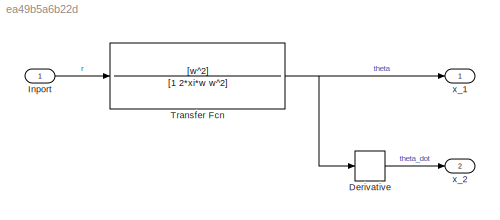
MODEL slx_ea49b5a6b22d
KIND model
CONFIG AbsTol = auto
CONFIG EnableMultiTasking = off
CONFIG FixedStep = auto
CONFIG MaxStep = auto
CONFIG MinStep = auto
CONFIG RelTol = 1e-3
CONFIG SampleTimeConstraint = Unconstrained
CONFIG SolverName = VariableStepAuto
CONFIG StartTime = 0.0
CONFIG StopTime = 10.0
BLOCK [Derivative] Derivative
BLOCK [Inport] Inport
BLOCK [TransferFcn] Transfer Fcn
  Denominator = [1 2*xi*w w^2]
  Numerator = [w^2]
BLOCK [Outport] x_1
BLOCK [Outport] x_2
  Port = 2
LINE Derivative:1 -> x_2:1
LINE Inport:1 -> Transfer Fcn:1
NET Transfer Fcn:1 -> Derivative:1, x_1:1
note: NET lines group one-source signal fan-out (src -> all destinations, sorted); 1:1 wires keep LINE
